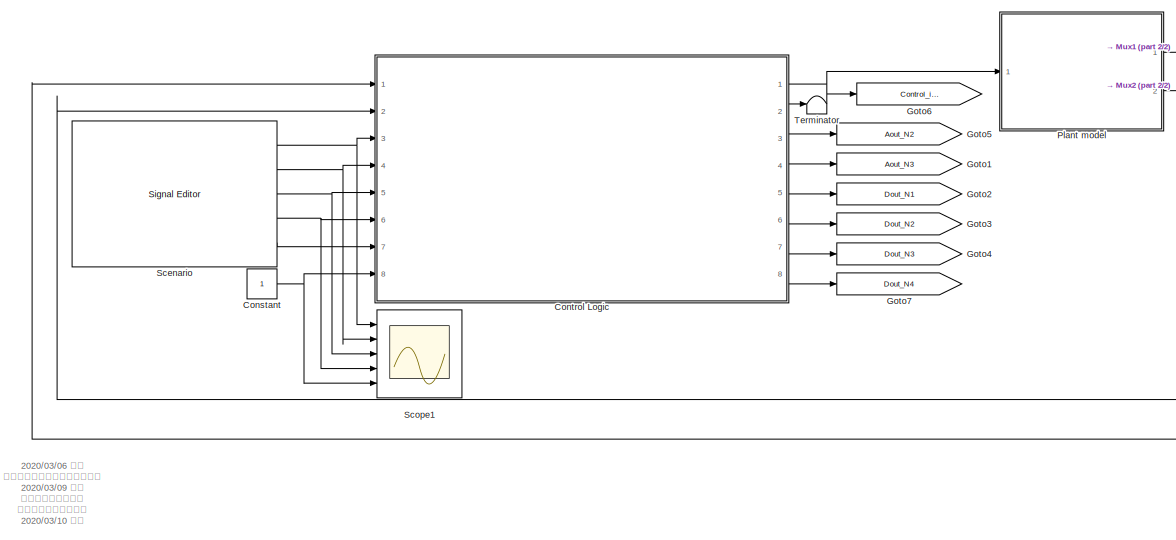
[diagram: root canvas - part 1/2, center side, full height]
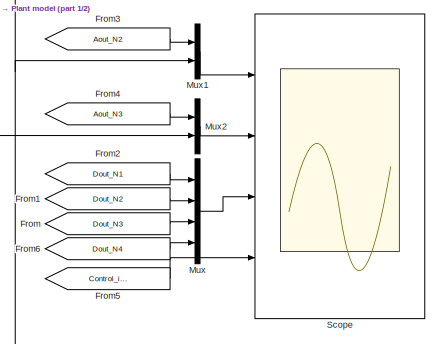
[diagram: root canvas - part 2/2, middle right region]
MODEL slx_d0a32ae34fdc
KIND model
CONFIG AbsTol = auto
CONFIG EnableMultiTasking = off
CONFIG FixedStep = auto
CONFIG MaxStep = 1
CONFIG MinStep = auto
CONFIG RelTol = 1e-7
CONFIG SampleTimeConstraint = Unconstrained
CONFIG Solver = FixedStepAuto
CONFIG SolverName = FixedStepAuto
CONFIG StartTime = 0.0
CONFIG StopTime = 50
BLOCK [Constant] Constant
  OutDataTypeStr = boolean
BLOCK [ModelReference] Control Logic
  ModelNameDialog = Control_Logic_b.slx
  ModelReferenceVersion = 1.275
  Ports = [8, 8]
BLOCK [From] From
  GotoTag = Dout_N3
  TagVisibility = global
BLOCK [From] From1
  GotoTag = Dout_N2
  TagVisibility = global
BLOCK [From] From2
  GotoTag = Dout_N1
  TagVisibility = global
BLOCK [From] From3
  GotoTag = Aout_N2
  TagVisibility = global
BLOCK [From] From4
  GotoTag = Aout_N3
  TagVisibility = global
BLOCK [From] From5
  GotoTag = Control_input
  TagVisibility = global
BLOCK [From] From6
  GotoTag = Dout_N4
  TagVisibility = global
BLOCK [Goto] Goto1
  GotoTag = Aout_N3
  TagVisibility = global
BLOCK [Goto] Goto2
  GotoTag = Dout_N1
  TagVisibility = global
BLOCK [Goto] Goto3
  GotoTag = Dout_N2
  TagVisibility = global
BLOCK [Goto] Goto4
  GotoTag = Dout_N3
  TagVisibility = global
BLOCK [Goto] Goto5
  GotoTag = Aout_N2
  TagVisibility = global
BLOCK [Goto] Goto6
  GotoTag = Control_input
  TagVisibility = global
BLOCK [Goto] Goto7
  GotoTag = Dout_N4
  TagVisibility = global
BLOCK [Mux] Mux
  DisplayOption = bar
  Ports = [4, 1]
BLOCK [Mux] Mux1
  DisplayOption = bar
  Inputs = 2
  Ports = [2, 1]
BLOCK [Mux] Mux2
  DisplayOption = bar
  Inputs = 2
  Ports = [2, 1]
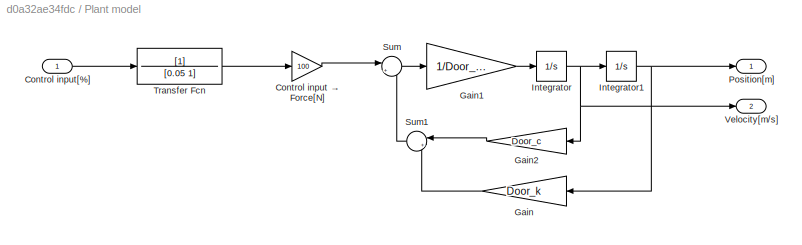
BLOCK [SubSystem] Plant model
  Ports = [1, 2]
  RequestExecContextInheritance = off
BLOCK [Gain] Plant model/Control input → Force[N]
  Gain = 100
  OutDataTypeStr = Inherit: Inherit via internal rule
  ParamDataTypeStr = Inherit: Inherit via internal rule
  SaturateOnIntegerOverflow = off
BLOCK [Inport] Plant model/Control input[%]
  IconDisplay = Port number
BLOCK [Gain] Plant model/Gain
  Gain = Door_k
  OutDataTypeStr = Inherit: Inherit via internal rule
  ParamDataTypeStr = Inherit: Inherit via internal rule
  SaturateOnIntegerOverflow = off
BLOCK [Gain] Plant model/Gain1
  Gain = 1/Door_mass
  OutDataTypeStr = Inherit: Inherit via internal rule
  ParamDataTypeStr = Inherit: Inherit via internal rule
  SaturateOnIntegerOverflow = off
BLOCK [Gain] Plant model/Gain2
  Gain = Door_c
  OutDataTypeStr = Inherit: Inherit via internal rule
  ParamDataTypeStr = Inherit: Inherit via internal rule
  SaturateOnIntegerOverflow = off
BLOCK [Integrator] Plant model/Integrator
  InitialCondition = Ini_v
  Ports = [1, 1]
BLOCK [Integrator] Plant model/Integrator1
  Ports = [1, 1]
BLOCK [Outport] Plant model/Position[m]
  IconDisplay = Port number
  VectorParamsAs1DForOutWhenUnconnected = off
BLOCK [Sum] Plant model/Sum
  IconShape = round
  InputSameDT = off
  Inputs = |+-
  OutDataTypeStr = Inherit: Inherit via internal rule
  Ports = [2, 1]
  SaturateOnIntegerOverflow = off
BLOCK [Sum] Plant model/Sum1
  IconShape = round
  InputSameDT = off
  Inputs = |++
  OutDataTypeStr = Inherit: Inherit via internal rule
  Ports = [2, 1]
  SaturateOnIntegerOverflow = off
BLOCK [TransferFcn] Plant model/Transfer Fcn
  Denominator = [0.05 1]
BLOCK [Outport] Plant model/Velocity[m//s]
  IconDisplay = Port number
  Port = 2
  VectorParamsAs1DForOutWhenUnconnected = off
BLOCK [Reference] Scenario  REF=SignalEditorBlockLib/Signal Editor
  Ports = [0, 5]
  SourceBlock = SignalEditorBlockLib/Signal Editor
  SourceProductBaseCode = SL
  SourceProductName = Simulink
  SourceType = SignalEditor
  UserDataPersistent = on
BLOCK [Scope] Scope
  Floating = off
  NumInputPorts = 4
  Ports = [4]
  ScopeSpecificationString = Simulink.scopes.TimeScopeBlockCfg('CurrentConfiguration', extmgr.ConfigurationSet(extmgr.Configuration('Core','General UI',true),extmgr.Configuration('Core','Source UI',true),extmgr.Configuration('Sources','WiredSimulink',true),extmgr.Configuration('Visuals','Time Domain',true,'SerializedDisplays',{struct('MinYLimReal','-0.12526','MaxYLimReal','1.12507','YLabelReal','','MinYLimMag','0.00000','MaxY...<+3496ch>
BLOCK [Scope] Scope1
  Floating = off
  NumInputPorts = 5
  Ports = [5]
  ScopeSpecificationString = Simulink.scopes.TimeScopeBlockCfg('CurrentConfiguration', extmgr.ConfigurationSet(extmgr.Configuration('Core','General UI',true),extmgr.Configuration('Core','Source UI',true),extmgr.Configuration('Sources','WiredSimulink',true,'DataLoggingVariableName','ScopeData1'),extmgr.Configuration('Visuals','Time Domain',true,'SerializedDisplays',{struct('MinYLimReal','-6.25','MaxYLimReal','56.25','YLabelRea...<+6883ch>
BLOCK [Terminator] Terminator
ANNOTATION (root): 2020/03/06 大内 ・制御ロジックの作成を開始。 2020/03/09 大内 ・シナリオを作成。 ・物理モデルを作成。 2020/03/10 大内 ・位置制御ロジックを実装し、ドアの開閉が正しく動作することを確認した。 ・開動作中、閉動作中に緊急停止ボタンを押すと待機状態となり、制御指令値がトラッキングされることを確認した。 ・緊急停止後、リセット操作で開状態になることを確認した。 2020/03/11 大内 ・ 手動操作によるドア開閉動作を確認。 ・ドア閉状態時に切り替わるswitchの分岐網羅が難しいケースとして想定していたものの、よくよく考えたら手動操作or一定値信号入力継続で簡単にドア閉状態になるため、不適当。 ドア閉状態になるには、① 通常動作によるドア開→ドア閉、②手動操作の2パターンを想定。そこで、a.人がドアの前に立ち、開いてから立ち去る or b.ドア開状態になら...<+151ch>
NET Constant:1 -> Control Logic:8, Scope1:5
NET Control Logic:1 -> Goto6:1, Plant model:1
LINE Control Logic:2 -> Terminator:1
LINE Control Logic:3 -> Goto5:1
LINE Control Logic:4 -> Goto1:1
LINE Control Logic:5 -> Goto2:1
LINE Control Logic:6 -> Goto3:1
LINE Control Logic:7 -> Goto4:1
LINE Control Logic:8 -> Goto7:1
LINE From1:1 -> Mux:2
LINE From2:1 -> Mux:1
LINE From3:1 -> Mux1:1
LINE From4:1 -> Mux2:1
LINE From5:1 -> Scope:4
LINE From6:1 -> Mux:4
LINE From:1 -> Mux:3
LINE Mux1:1 -> Scope:1
LINE Mux2:1 -> Scope:2
LINE Mux:1 -> Scope:3
LINE Plant model/Control input → Force[N]:1 -> Plant model/Sum:1
LINE Plant model/Control input[%]:1 -> Plant model/Transfer Fcn:1
LINE Plant model/Gain1:1 -> Plant model/Integrator:1
LINE Plant model/Gain2:1 -> Plant model/Sum1:1
LINE Plant model/Gain:1 -> Plant model/Sum1:2
NET Plant model/Integrator1:1 -> Plant model/Gain:1, Plant model/Position[m]:1
NET Plant model/Integrator:1 -> Plant model/Gain2:1, Plant model/Integrator1:1, Plant model/Velocity[m//s]:1
LINE Plant model/Sum1:1 -> Plant model/Sum:2
LINE Plant model/Sum:1 -> Plant model/Gain1:1
LINE Plant model/Transfer Fcn:1 -> Plant model/Control input → Force[N]:1
NET Plant model:1 -> Control Logic:1, Mux1:2
NET Plant model:2 -> Control Logic:2, Mux2:2
NET Scenario:1 -> Control Logic:3, Scope1:1
NET Scenario:2 -> Control Logic:4, Scope1:2
NET Scenario:3 -> Control Logic:5, Scope1:3
NET Scenario:4 -> Control Logic:6, Scope1:4
LINE Scenario:5 -> Control Logic:7
note: NET lines group one-source signal fan-out (src -> all destinations, sorted); 1:1 wires keep LINE
